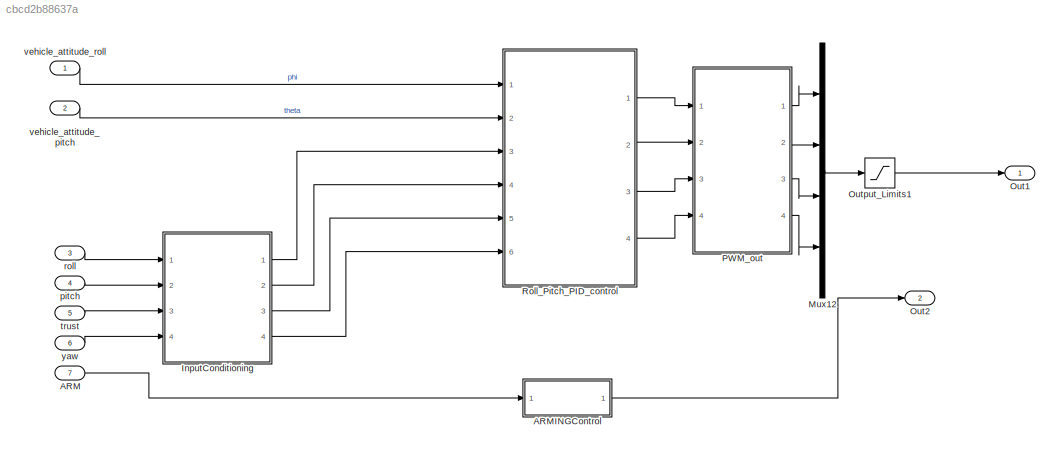
MODEL slx_cbcd2b88637a
KIND model
CONFIG AbsTol = auto
CONFIG EnableMultiTasking = off
CONFIG FixedStep = auto
CONFIG MaxStep = auto
CONFIG MinStep = auto
CONFIG RelTol = 1e-3
CONFIG SampleTimeConstraint = Unconstrained
CONFIG Solver = VariableStepAuto
CONFIG SolverName = VariableStepAuto
CONFIG StartTime = 0.0
CONFIG StopTime = 10.0
BLOCK [Inport] ARM
  IconDisplay = Port number
  Port = 7
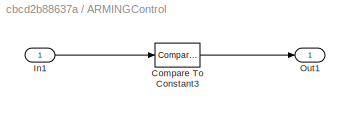
BLOCK [SubSystem] ARMINGControl
  Ports = [1, 1]
  RequestExecContextInheritance = off
  Variant = off
BLOCK [Reference] ARMINGControl/Compare To Constant3  REF=simulink/Logic and Bit
Operations/Compare
To Constant
  Ports = [1, 1]
  SourceBlock = simulink/Logic and Bit\nOperations/Compare\nTo Constant
  SourceType = Compare To Constant
BLOCK [Inport] ARMINGControl/In1
  IconDisplay = Port number
BLOCK [Outport] ARMINGControl/Out1
  IconDisplay = Port number
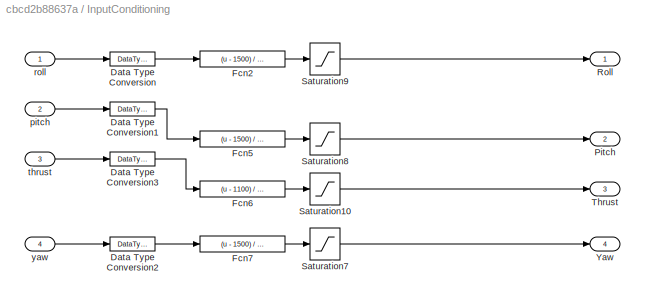
BLOCK [SubSystem] InputConditioning
  Ports = [4, 4]
  RequestExecContextInheritance = off
  Variant = off
BLOCK [DataTypeConversion] InputConditioning/Data Type Conversion
  OutDataTypeStr = single
  RndMeth = Floor
  SaturateOnIntegerOverflow = off
BLOCK [DataTypeConversion] InputConditioning/Data Type Conversion1
  OutDataTypeStr = single
  RndMeth = Floor
  SaturateOnIntegerOverflow = off
BLOCK [DataTypeConversion] InputConditioning/Data Type Conversion2
  OutDataTypeStr = single
  RndMeth = Floor
  SaturateOnIntegerOverflow = off
BLOCK [DataTypeConversion] InputConditioning/Data Type Conversion3
  OutDataTypeStr = single
  RndMeth = Floor
  SaturateOnIntegerOverflow = off
BLOCK [Fcn] InputConditioning/Fcn2
  Expr = (u - 1500) / 400
BLOCK [Fcn] InputConditioning/Fcn5
  Expr = (u - 1500) / 400
BLOCK [Fcn] InputConditioning/Fcn6
  Expr = (u - 1100) / 800
BLOCK [Fcn] InputConditioning/Fcn7
  Expr = (u - 1500) / 400
BLOCK [Outport] InputConditioning/Pitch
  IconDisplay = Port number
  Port = 2
BLOCK [Outport] InputConditioning/Roll
  IconDisplay = Port number
BLOCK [Saturate] InputConditioning/Saturation10
  InputPortMap = u0
  LowerLimit = 0
  Ports = [1, 1]
  UpperLimit = 1
BLOCK [Saturate] InputConditioning/Saturation7
  InputPortMap = u0
  LowerLimit = -1
  Ports = [1, 1]
  UpperLimit = 1
BLOCK [Saturate] InputConditioning/Saturation8
  InputPortMap = u0
  LowerLimit = -1
  Ports = [1, 1]
  UpperLimit = 1
BLOCK [Saturate] InputConditioning/Saturation9
  InputPortMap = u0
  LowerLimit = -1
  Ports = [1, 1]
  UpperLimit = 1
BLOCK [Outport] InputConditioning/Thrust
  IconDisplay = Port number
  Port = 3
BLOCK [Outport] InputConditioning/Yaw
  IconDisplay = Port number
  Port = 4
BLOCK [Inport] InputConditioning/pitch
  IconDisplay = Port number
  Port = 2
BLOCK [Inport] InputConditioning/roll
  IconDisplay = Port number
BLOCK [Inport] InputConditioning/thrust
  IconDisplay = Port number
  Port = 3
BLOCK [Inport] InputConditioning/yaw
  IconDisplay = Port number
  Port = 4
BLOCK [Mux] Mux12
  DisplayOption = bar
  Ports = [4, 1]
BLOCK [Outport] Out1
  IconDisplay = Port number
BLOCK [Outport] Out2
  IconDisplay = Port number
  Port = 2
BLOCK [Saturate] Output_Limits1
  InputPortMap = u0
  LowerLimit = 1000
  Ports = [1, 1]
  UpperLimit = 2000
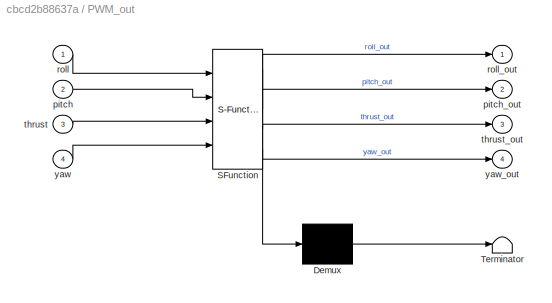
BLOCK [SubSystem] PWM_out
  ErrorFcn = Stateflow.Translate.translate
  PermitHierarchicalResolution = ExplicitOnly
  Ports = [4, 4]
  RequestExecContextInheritance = off
  SFBlockType = MATLAB Function
  TreatAsAtomicUnit = on
  Variant = off
BLOCK [Demux] PWM_out/ Demux 
  Outputs = 1
  Ports = [1, 1]
BLOCK [S-Function] PWM_out/ SFunction 
  EnableBusSupport = on
  FunctionName = sf_sfun
  PortCounts = [4 5]
  Ports = [4, 5]
  SFcnIsStateOwnerBlock = off
  SFunctionDeploymentMode = off
  Tag = Stateflow S-Function roll_pitch_pid_control_system 2
BLOCK [Terminator] PWM_out/ Terminator 
BLOCK [Inport] PWM_out/pitch
  IconDisplay = Port number
  Port = 2
BLOCK [Outport] PWM_out/pitch_out
  IconDisplay = Port number
  Port = 2
BLOCK [Inport] PWM_out/roll
  IconDisplay = Port number
BLOCK [Outport] PWM_out/roll_out
  IconDisplay = Port number
BLOCK [Inport] PWM_out/thrust
  IconDisplay = Port number
  Port = 3
BLOCK [Outport] PWM_out/thrust_out
  IconDisplay = Port number
  Port = 3
BLOCK [Inport] PWM_out/yaw
  IconDisplay = Port number
  Port = 4
BLOCK [Outport] PWM_out/yaw_out
  IconDisplay = Port number
  Port = 4
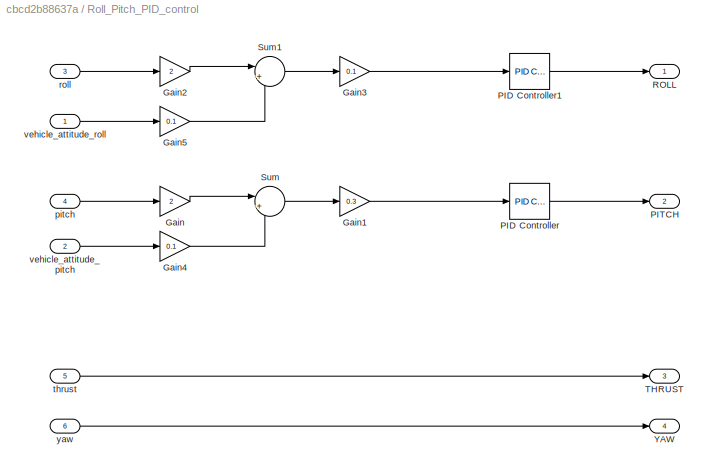
BLOCK [SubSystem] Roll_Pitch_PID_control
  Ports = [6, 4]
  RequestExecContextInheritance = off
  Variant = off
BLOCK [Gain] Roll_Pitch_PID_control/Gain
  Gain = 2
  OutDataTypeStr = Inherit: Inherit via internal rule
  ParamDataTypeStr = Inherit: Inherit via internal rule
  SaturateOnIntegerOverflow = off
BLOCK [Gain] Roll_Pitch_PID_control/Gain1
  Gain = 0.3
  OutDataTypeStr = Inherit: Inherit via internal rule
  ParamDataTypeStr = Inherit: Inherit via internal rule
  SaturateOnIntegerOverflow = off
BLOCK [Gain] Roll_Pitch_PID_control/Gain2
  Gain = 2
  OutDataTypeStr = Inherit: Inherit via internal rule
  ParamDataTypeStr = Inherit: Inherit via internal rule
  SaturateOnIntegerOverflow = off
BLOCK [Gain] Roll_Pitch_PID_control/Gain3
  Gain = 0.1
  OutDataTypeStr = Inherit: Inherit via internal rule
  ParamDataTypeStr = Inherit: Inherit via internal rule
  SaturateOnIntegerOverflow = off
BLOCK [Gain] Roll_Pitch_PID_control/Gain4
  Gain = 0.1
  OutDataTypeStr = Inherit: Inherit via internal rule
  ParamDataTypeStr = Inherit: Inherit via internal rule
  SaturateOnIntegerOverflow = off
BLOCK [Gain] Roll_Pitch_PID_control/Gain5
  Gain = 0.1
  OutDataTypeStr = Inherit: Inherit via internal rule
  ParamDataTypeStr = Inherit: Inherit via internal rule
  SaturateOnIntegerOverflow = off
BLOCK [Reference] Roll_Pitch_PID_control/PID Controller  REF=simulink/Continuous/PID Controller
  Ports = [1, 1]
  SourceBlock = simulink/Continuous/PID Controller
  SourceType = PID 1dof
BLOCK [Reference] Roll_Pitch_PID_control/PID Controller1  REF=simulink/Continuous/PID Controller
  Ports = [1, 1]
  SourceBlock = simulink/Continuous/PID Controller
  SourceType = PID 1dof
BLOCK [Outport] Roll_Pitch_PID_control/PITCH
  IconDisplay = Port number
  Port = 2
BLOCK [Outport] Roll_Pitch_PID_control/ROLL
  IconDisplay = Port number
BLOCK [Sum] Roll_Pitch_PID_control/Sum
  IconShape = round
  InputSameDT = off
  Inputs = |+-
  OutDataTypeStr = Inherit: Inherit via internal rule
  Ports = [2, 1]
  SaturateOnIntegerOverflow = off
BLOCK [Sum] Roll_Pitch_PID_control/Sum1
  IconShape = round
  InputSameDT = off
  Inputs = |+-
  OutDataTypeStr = Inherit: Inherit via internal rule
  Ports = [2, 1]
  SaturateOnIntegerOverflow = off
BLOCK [Outport] Roll_Pitch_PID_control/THRUST
  IconDisplay = Port number
  Port = 3
BLOCK [Outport] Roll_Pitch_PID_control/YAW
  IconDisplay = Port number
  Port = 4
BLOCK [Inport] Roll_Pitch_PID_control/pitch
  IconDisplay = Port number
  Port = 4
BLOCK [Inport] Roll_Pitch_PID_control/roll
  IconDisplay = Port number
  Port = 3
BLOCK [Inport] Roll_Pitch_PID_control/thrust
  IconDisplay = Port number
  Port = 5
BLOCK [Inport] Roll_Pitch_PID_control/vehicle_attitude_pitch
  IconDisplay = Port number
  Port = 2
BLOCK [Inport] Roll_Pitch_PID_control/vehicle_attitude_roll
  IconDisplay = Port number
BLOCK [Inport] Roll_Pitch_PID_control/yaw
  IconDisplay = Port number
  Port = 6
BLOCK [Inport] pitch
  IconDisplay = Port number
  Port = 4
BLOCK [Inport] roll
  IconDisplay = Port number
  Port = 3
BLOCK [Inport] trust
  IconDisplay = Port number
  Port = 5
BLOCK [Inport] vehicle_attitude_pitch
  IconDisplay = Port number
  Port = 2
BLOCK [Inport] vehicle_attitude_roll
  IconDisplay = Port number
BLOCK [Inport] yaw
  IconDisplay = Port number
  Port = 6
LINE ARM:1 -> ARMINGControl:1
LINE ARMINGControl/Compare To Constant3:1 -> ARMINGControl/Out1:1
LINE ARMINGControl/In1:1 -> ARMINGControl/Compare To Constant3:1
LINE ARMINGControl:1 -> Out2:1
LINE InputConditioning/Data Type Conversion1:1 -> InputConditioning/Fcn5:1
LINE InputConditioning/Data Type Conversion2:1 -> InputConditioning/Fcn7:1
LINE InputConditioning/Data Type Conversion3:1 -> InputConditioning/Fcn6:1
LINE InputConditioning/Data Type Conversion:1 -> InputConditioning/Fcn2:1
LINE InputConditioning/Fcn2:1 -> InputConditioning/Saturation9:1
LINE InputConditioning/Fcn5:1 -> InputConditioning/Saturation8:1
LINE InputConditioning/Fcn6:1 -> InputConditioning/Saturation10:1
LINE InputConditioning/Fcn7:1 -> InputConditioning/Saturation7:1
LINE InputConditioning/Saturation10:1 -> InputConditioning/Thrust:1
LINE InputConditioning/Saturation7:1 -> InputConditioning/Yaw:1
LINE InputConditioning/Saturation8:1 -> InputConditioning/Pitch:1
LINE InputConditioning/Saturation9:1 -> InputConditioning/Roll:1
LINE InputConditioning/pitch:1 -> InputConditioning/Data Type Conversion1:1
LINE InputConditioning/roll:1 -> InputConditioning/Data Type Conversion:1
LINE InputConditioning/thrust:1 -> InputConditioning/Data Type Conversion3:1
LINE InputConditioning/yaw:1 -> InputConditioning/Data Type Conversion2:1
LINE InputConditioning:1 -> Roll_Pitch_PID_control:3
LINE InputConditioning:2 -> Roll_Pitch_PID_control:4
LINE InputConditioning:3 -> Roll_Pitch_PID_control:5
LINE InputConditioning:4 -> Roll_Pitch_PID_control:6
LINE Mux12:1 -> Output_Limits1:1
LINE Output_Limits1:1 -> Out1:1
LINE PWM_out:1 -> Mux12:1
LINE PWM_out:2 -> Mux12:2
LINE PWM_out:3 -> Mux12:3
LINE PWM_out:4 -> Mux12:4
LINE Roll_Pitch_PID_control/Gain1:1 -> Roll_Pitch_PID_control/PID Controller:1
LINE Roll_Pitch_PID_control/Gain2:1 -> Roll_Pitch_PID_control/Sum1:1
LINE Roll_Pitch_PID_control/Gain3:1 -> Roll_Pitch_PID_control/PID Controller1:1
LINE Roll_Pitch_PID_control/Gain4:1 -> Roll_Pitch_PID_control/Sum:2
LINE Roll_Pitch_PID_control/Gain5:1 -> Roll_Pitch_PID_control/Sum1:2
LINE Roll_Pitch_PID_control/Gain:1 -> Roll_Pitch_PID_control/Sum:1
LINE Roll_Pitch_PID_control/PID Controller1:1 -> Roll_Pitch_PID_control/ROLL:1
LINE Roll_Pitch_PID_control/PID Controller:1 -> Roll_Pitch_PID_control/PITCH:1
LINE Roll_Pitch_PID_control/Sum1:1 -> Roll_Pitch_PID_control/Gain3:1
LINE Roll_Pitch_PID_control/Sum:1 -> Roll_Pitch_PID_control/Gain1:1
LINE Roll_Pitch_PID_control/pitch:1 -> Roll_Pitch_PID_control/Gain:1
LINE Roll_Pitch_PID_control/roll:1 -> Roll_Pitch_PID_control/Gain2:1
LINE Roll_Pitch_PID_control/thrust:1 -> Roll_Pitch_PID_control/THRUST:1
LINE Roll_Pitch_PID_control/vehicle_attitude_pitch:1 -> Roll_Pitch_PID_control/Gain4:1
LINE Roll_Pitch_PID_control/vehicle_attitude_roll:1 -> Roll_Pitch_PID_control/Gain5:1
LINE Roll_Pitch_PID_control/yaw:1 -> Roll_Pitch_PID_control/YAW:1
LINE Roll_Pitch_PID_control:1 -> PWM_out:1
LINE Roll_Pitch_PID_control:2 -> PWM_out:2
LINE Roll_Pitch_PID_control:3 -> PWM_out:3
LINE Roll_Pitch_PID_control:4 -> PWM_out:4
LINE pitch:1 -> InputConditioning:2
LINE roll:1 -> InputConditioning:1
LINE trust:1 -> InputConditioning:3
LINE vehicle_attitude_pitch:1 -> Roll_Pitch_PID_control:2
LINE vehicle_attitude_roll:1 -> Roll_Pitch_PID_control:1
LINE yaw:1 -> InputConditioning:4
CHART PWM_out states=1 transitions=1
  STATE_LABEL 'eML_blk_kernel()'
  STATE_LABEL 'SCRIPT:\nfunction [roll_out,pitch_out,thrust_out,yaw_out] = fcn(roll,pitch,thrust,yaw)\nroll_out=uint16(1500+(roll)*400);\npitch_out=uint16(1500+(pitch)*400);\nthrust_out=uint16(1100+(thrust)*800);\nyaw=uint16(1500+(thrust)*400);\n\n'
